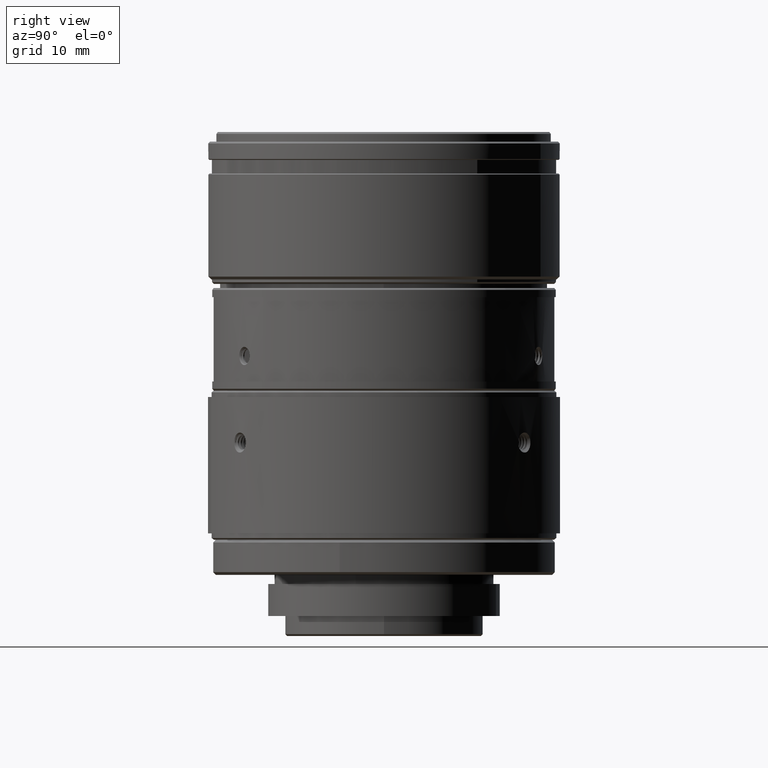
[diagram: clean part render]
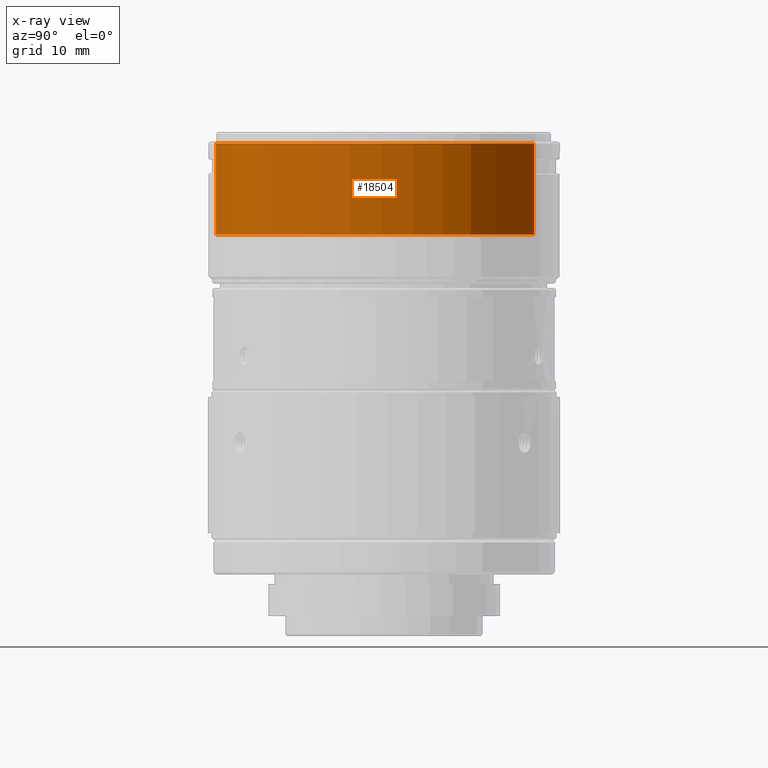
[diagram: x-ray — body ghosted, one internal face saturated and labeled with its STEP entity id]
A machine part, right view, then the same camera in x-ray: the body is ghosted and one INTERNAL B-rep face — a face not visible from any outside direction — is saturated and labeled: STEP entity #18504.
In plain terms, the highlighted cylindrical surface (partial cylindrical patch) has radius 18.5 mm, axis along (0, 0, 1).
Its self-contained STEP definition (entity closure, byte-faithful):
#489 = ORIENTED_EDGE ( 'NONE', *, *, #42949, .F. ) ;
#515 = EDGE_LOOP ( 'NONE', ( #489, #16065, #26637, #29060 ) ) ;
#4858 = CARTESIAN_POINT ( 'NONE',  ( -8.446280569618279443, -16.40186455191595627, 29.06500000000000128 ) ) ;
#5900 = VERTEX_POINT ( 'NONE', #42606 ) ;
#7002 = DIRECTION ( 'NONE',  ( -0.4578739151169349264, -0.8890171414857477306, 0.000000000000000000 ) ) ;
#8277 = AXIS2_PLACEMENT_3D ( 'NONE', #40357, #20727, #7002 ) ;
#9695 = FACE_OUTER_BOUND ( 'NONE', #515, .T. ) ;
#10139 = CARTESIAN_POINT ( 'NONE',  ( 0.02438686004500230028, 0.04495256557037800860, 29.06500000000000128 ) ) ;
#11465 = VERTEX_POINT ( 'NONE', #29778 ) ;
#12266 = VERTEX_POINT ( 'NONE', #40915 ) ;
#14597 = CIRCLE ( 'NONE', #23190, 18.50000000000000355 ) ;
#16065 = ORIENTED_EDGE ( 'NONE', *, *, #43961, .T. ) ;
#17951 = CARTESIAN_POINT ( 'NONE',  ( 0.02438686004500230028, 0.04495256557037800860, 35.56000000000000227 ) ) ;
#18384 = DIRECTION ( 'NONE',  ( 0.000000000000000000, 0.000000000000000000, 1.000000000000000000 ) ) ;
#18504 = ADVANCED_FACE ( 'NONE', ( #9695 ), #34031, .F. ) ;
#20727 = DIRECTION ( 'NONE',  ( 0.000000000000000000, 0.000000000000000000, -1.000000000000000000 ) ) ;
#21936 = EDGE_CURVE ( 'NONE', #27076, #12266, #39204, .T. ) ;
#22848 = DIRECTION ( 'NONE',  ( 0.000000000000000000, 0.000000000000000000, 1.000000000000000000 ) ) ;
#23190 = AXIS2_PLACEMENT_3D ( 'NONE', #17951, #18384, #32151 ) ;
#23431 = DIRECTION ( 'NONE',  ( 0.000000000000000000, 0.000000000000000000, 1.000000000000000000 ) ) ;
#24097 = DIRECTION ( 'NONE',  ( 0.4578739151169341492, 0.8890171414857480636, 0.000000000000000000 ) ) ;
#24695 = DIRECTION ( 'NONE',  ( 0.000000000000000000, 0.000000000000000000, 1.000000000000000000 ) ) ;
#25362 = LINE ( 'NONE', #4858, #33088 ) ;
#26402 = EDGE_CURVE ( 'NONE', #5900, #27076, #43137, .T. ) ;
#26637 = ORIENTED_EDGE ( 'NONE', *, *, #21936, .F. ) ;
#26840 = CARTESIAN_POINT ( 'NONE',  ( 8.495054289708283690, 16.49176968305672020, 45.56000000000000227 ) ) ;
#27076 = VERTEX_POINT ( 'NONE', #26840 ) ;
#29060 = ORIENTED_EDGE ( 'NONE', *, *, #26402, .F. ) ;
#29778 = CARTESIAN_POINT ( 'NONE',  ( -8.446280569618281220, -16.40186455191595982, 35.56000000000000227 ) ) ;
#32151 = DIRECTION ( 'NONE',  ( 0.4578739151169349264, 0.8890171414857477306, 0.000000000000000000 ) ) ;
#32759 = VECTOR ( 'NONE', #22848, 1000.000000000000000 ) ;
#33088 = VECTOR ( 'NONE', #24695, 1000.000000000000000 ) ;
#34031 = CYLINDRICAL_SURFACE ( 'NONE', #36858, 18.49999999999999645 ) ;
#36858 = AXIS2_PLACEMENT_3D ( 'NONE', #10139, #23431, #24097 ) ;
#39204 = CIRCLE ( 'NONE', #8277, 18.50000000000000355 ) ;
#40357 = CARTESIAN_POINT ( 'NONE',  ( 0.02438686004500230028, 0.04495256557037800860, 45.56000000000000227 ) ) ;
#40915 = CARTESIAN_POINT ( 'NONE',  ( -8.446280569618281220, -16.40186455191595982, 45.56000000000000227 ) ) ;
#42606 = CARTESIAN_POINT ( 'NONE',  ( 8.495054289708299677, 16.49176968305671664, 35.56000000000000227 ) ) ;
#42694 = CARTESIAN_POINT ( 'NONE',  ( 8.495054289708281914, 16.49176968305671664, 29.06500000000000128 ) ) ;
#42949 = EDGE_CURVE ( 'NONE', #11465, #5900, #14597, .T. ) ;
#43137 = LINE ( 'NONE', #42694, #32759 ) ;
#43961 = EDGE_CURVE ( 'NONE', #11465, #12266, #25362, .T. ) ;